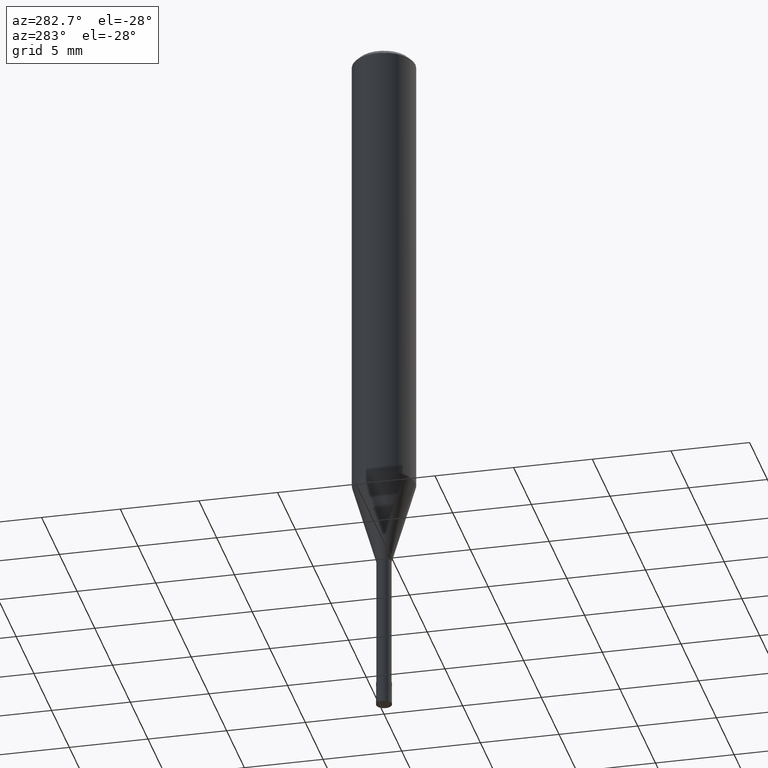
[diagram: clean part render]
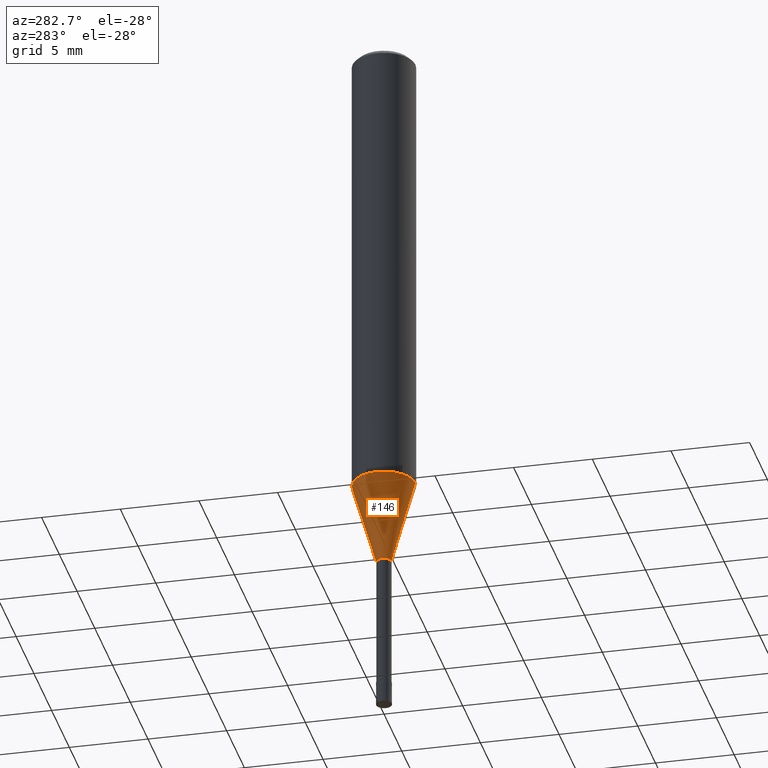
[diagram: same view with one face highlighted and labeled with its STEP entity id]
A machine part, auxiliary view. The second image highlights one B-rep face of the part: STEP entity #146.
In plain terms, the highlighted conical surface has half-angle 16.001 deg.
Its self-contained STEP definition (entity closure, byte-faithful):
#94=VERTEX_POINT('',#231);
#96=VERTEX_POINT('',#233);
#102=EDGE_CURVE('',#114,#96,#239,.T.);
#108=VERTEX_POINT('',#245);
#114=VERTEX_POINT('',#254);
#146=ADVANCED_FACE('',(#290),#291,.T.);
#164=EDGE_CURVE('',#94,#114,#310,.T.);
#174=EDGE_CURVE('',#96,#108,#322,.T.);
#180=EDGE_CURVE('',#94,#108,#328,.T.);
#231=CARTESIAN_POINT('',(5.81626787747938E-017,-0.47495,-35.0));
#233=CARTESIAN_POINT('',(0.0,1.99995,-29.682));
#239=CIRCLE('',#386,1.99995);
#245=CARTESIAN_POINT('',(0.0,0.47495,-35.0));
#254=CARTESIAN_POINT('',(2.44915147732706E-016,-1.99995,-29.682));
#290=FACE_OUTER_BOUND('',#446,.T.);
#291=CONICAL_SURFACE('',#447,1.23745,0.279267977304115);
#310=LINE('',#472,#473);
#322=LINE('',#488,#489);
#328=CIRCLE('',#500,0.47495);
#386=AXIS2_PLACEMENT_3D('',#545,#546,#547);
#446=EDGE_LOOP('',(#611,#612,#613,#614));
#447=AXIS2_PLACEMENT_3D('',#615,#616,#617);
#472=CARTESIAN_POINT('',(1.5153891325375E-016,-1.23745,-32.341));
#473=VECTOR('',#636,1.0);
#488=CARTESIAN_POINT('',(-1.5153891325375E-016,1.23745,-32.341));
#489=VECTOR('',#659,1.0);
#500=AXIS2_PLACEMENT_3D('',#662,#663,#664);
#545=CARTESIAN_POINT('',(0.0,0.0,-29.682));
#546=DIRECTION('',(0.0,0.0,-1.0));
#547=DIRECTION('',(0.0,1.0,0.0));
#611=ORIENTED_EDGE('',*,*,#174,.T.);
#612=ORIENTED_EDGE('',*,*,#180,.F.);
#613=ORIENTED_EDGE('',*,*,#164,.T.);
#614=ORIENTED_EDGE('',*,*,#102,.T.);
#615=CARTESIAN_POINT('',(0.0,0.0,-32.341));
#616=DIRECTION('',(-0.0,-0.0,1.0));
#617=DIRECTION('',(0.0,1.0,0.0));
#636=DIRECTION('',(3.37565264353533E-017,-0.275652060190515,0.961257479405349));
#659=DIRECTION('',(3.37565264353533E-017,-0.275652060190515,-0.961257479405349));
#662=CARTESIAN_POINT('',(0.0,0.0,-35.0));
#663=DIRECTION('',(0.0,0.0,-1.0));
#664=DIRECTION('',(0.0,1.0,0.0));